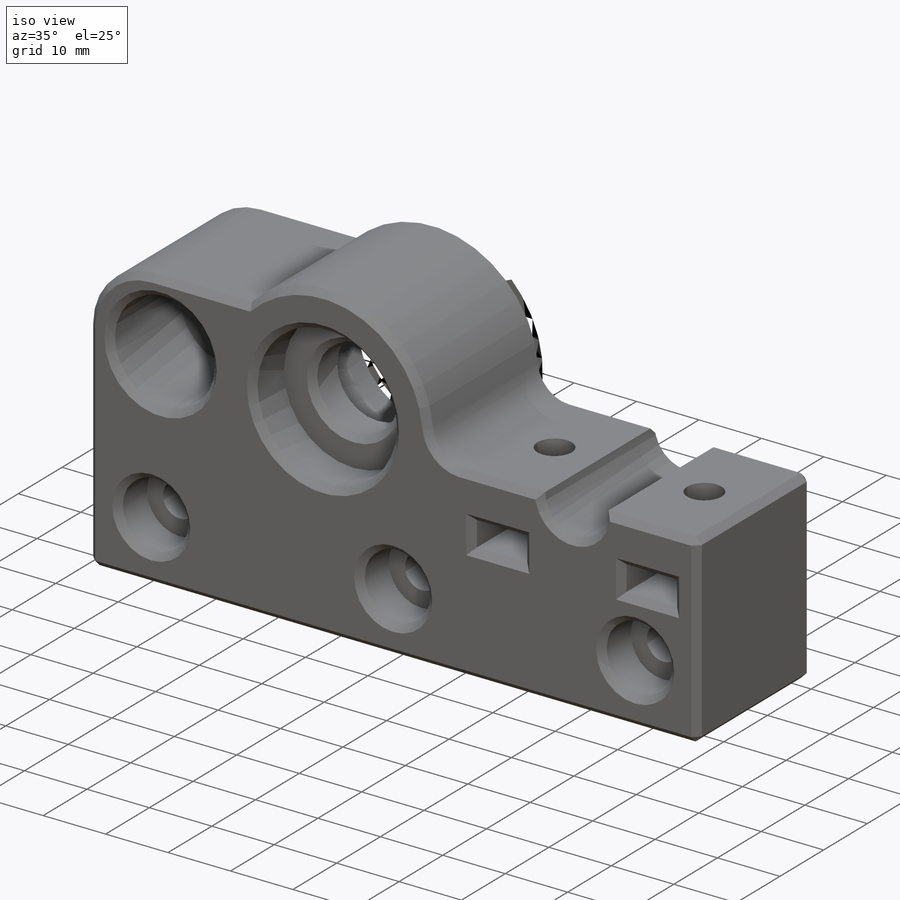
[diagram: iso view]
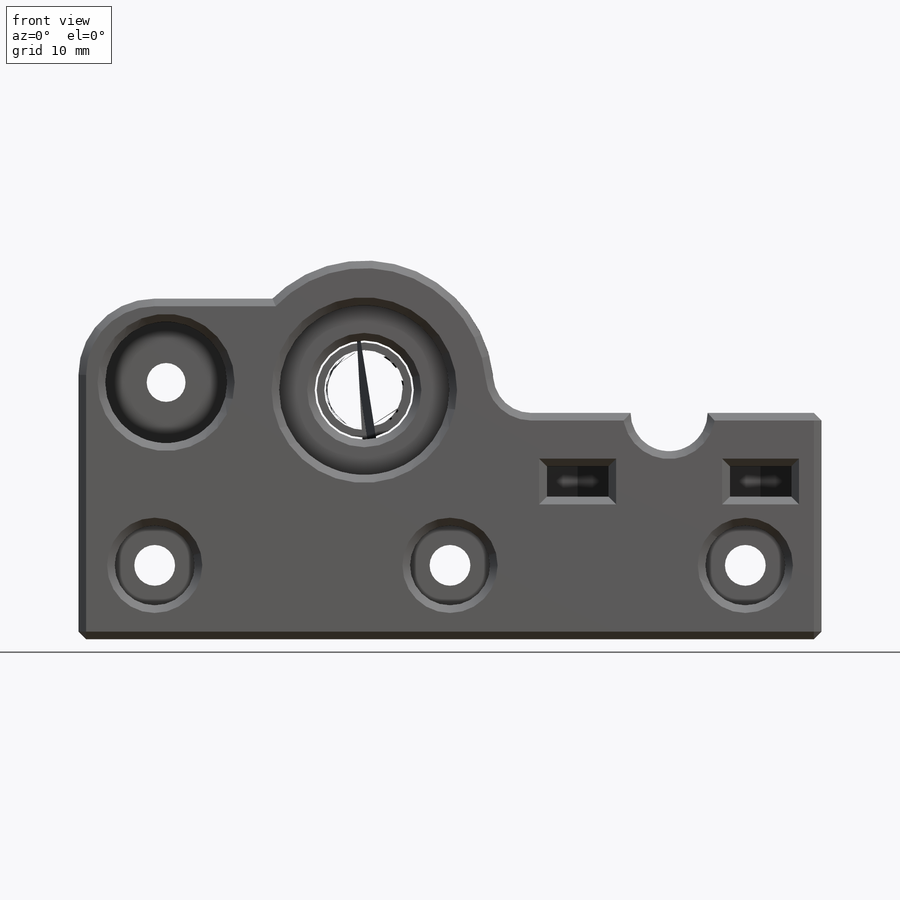
[diagram: front view]
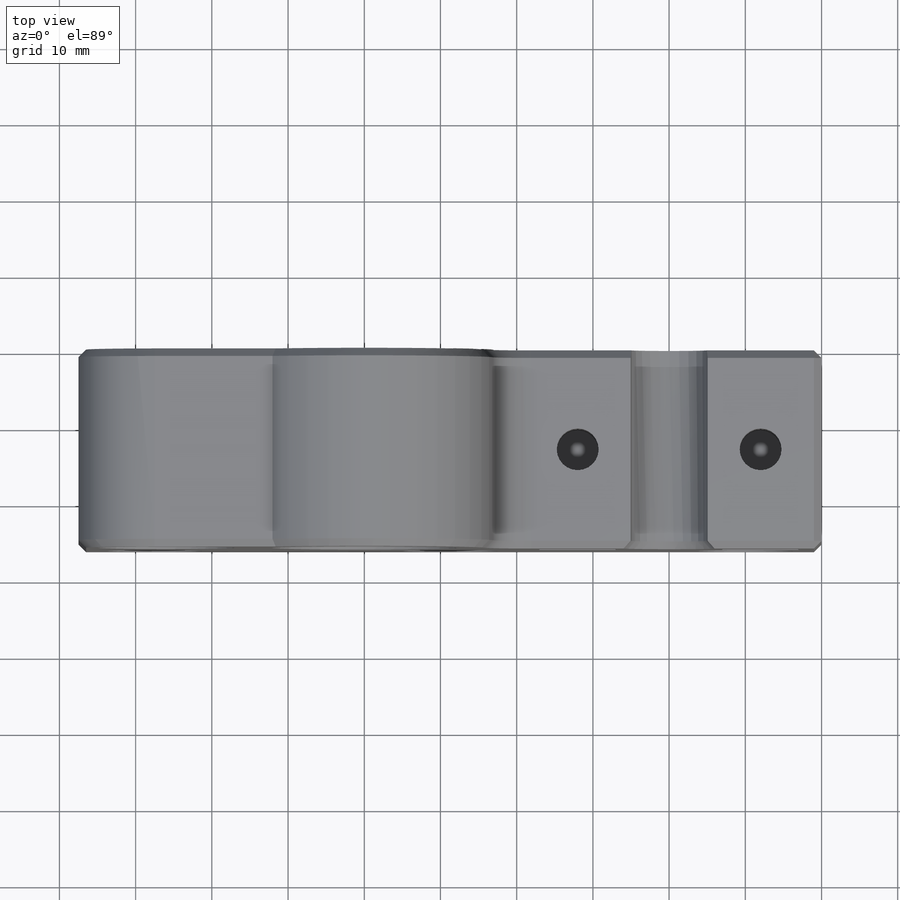
[diagram: top view]
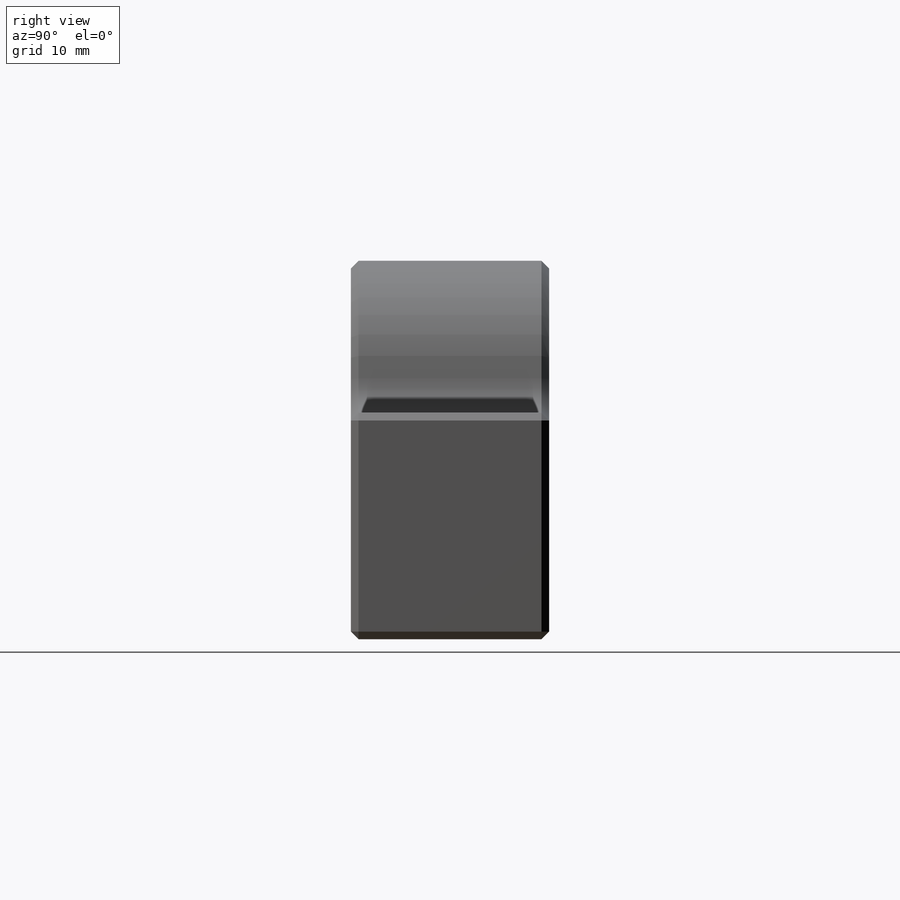
[diagram: right view]
SOLIDWORKS PART (.sldprt)
format: sldprt  version: not decoded by parser v0  size: 622,080 bytes
history: native  units: mm
features: sketch x14, cut_extrude x8, extrude x6, chamfer x2, material x1, fillet x1 (+13 scaffold rows collapsed)
feature tree (45):
  scaffold x13  (default folders/planes/origin — collapsed)
  material  "ABS"
  sketch  "Sketch1"  dims[c1.D1=22.35mm c1.D2=34.0mm c1.D6=5.35mm c1.D7=5.35mm c1.D9=15.0mm c1.D10=15.0mm c1.D11=13.0mm c2.D9=15.0mm c2.D10=15.0mm c2.D3=15.0mm c2.D5=13.0mm c3.D10=13.0mm c3.D12=10.1mm c3.D13=10.0mm c3.D14=13.0mm c4.D10=5.0mm c4.D15=5.0mm c4.D16=15.0mm c4.D8=22.1mm c4.D4=13.0mm c4.D3=13.0mm c5.D4=19.7mm c5.D5=10.0mm c5.D7=10.0mm c5.D8=75.0mm c5.D12=5.0mm c5.D13=20.0mm c5.D14=40.0mm c6.D4=19.7mm c6.D5=10.0mm c6.D10=13.0mm c6.D13=40.0mm c6.D14=3.0mm c7.D5=10.0mm c7.D9=13.0mm c7.D15=20.0mm c7.D16=19.7mm c7.D8=37.5mm c7.D4=3.0mm]
  extrude  "Boss-Extrude1"  Depth=26mm
  cut_extrude  "Cut-Extrude2"  [1 undecoded]
  sketch  "Sketch1<4>"  dims[D1=12.5mm]
  sketch  "Sketch4"  dims[D1=10.5mm D2=10.5mm]
  cut_extrude  "Cut-Extrude5"  Depth=6.5mm
  sketch  "Sketch9"  dims[D1=22.35mm]
  cut_extrude  "Cut-Extrude10"  Depth=7mm
  sketch  "Sketch6"  dims[D3=5.5mm D1=12.5mm D2=12.0mm]
  cut_extrude  "Cut-Extrude7"  Depth=14mm
  sketch  "Sketch7"  dims[D1=8.1mm D2=8.1mm]
  cut_extrude  "Cut-Extrude8"  Depth=4mm
  chamfer  "Chamfer1"  Distance=1mm Angle=45deg
  sketch  "Sketch10"  dims[D1=35.0mm]
  extrude  "Boss-Extrude2"  [1 undecoded]
  sketch  "Sketch11"  dims[c1.D1=5.1mm c1.D2=13.0mm c1.D3=22.1mm c1.D4=18.0mm c2.D2=26.0mm c2.D3=1.0mm]
  cut_extrude  "Cut-Extrude14"  Depth=10mm
  sketch  "Sketch12"  dims[D1=16.0mm]
  cut_extrude  "Cut-Extrude12"  [1 undecoded]
  fillet  "Fillet1"  Radius=10mm
  sketch  "Sketch13"
  cut_extrude  "Cut-Extrude16"  Depth=10mm
  chamfer  "Chamfer2"  Distance=1mm Angle=45deg
  sketch  "Sketch14"
  extrude  "Boss-Extrude3"  Depth=0.5mm
  sketch  "Sketch15"
  extrude  "Boss-Extrude4"  Depth=0.5mm
  sketch  "Sketch16"
  extrude  "Boss-Extrude5"  Depth=0.5mm
  sketch  "Sketch17"  dims[c1.D2=15.0mm c1.D3=16.0mm c2.D3=30.0deg c2.D1=0.0mm]
  extrude  "Boss-Extrude6"  Depth=0.5mm
decode coverage: 24 of 31 modeling features carry decoded parameters
note: 3 parameter values undecoded
summary: no parameter record found for 3 features
note: suppression state not decoded; provenance and decode notes live in map.json
